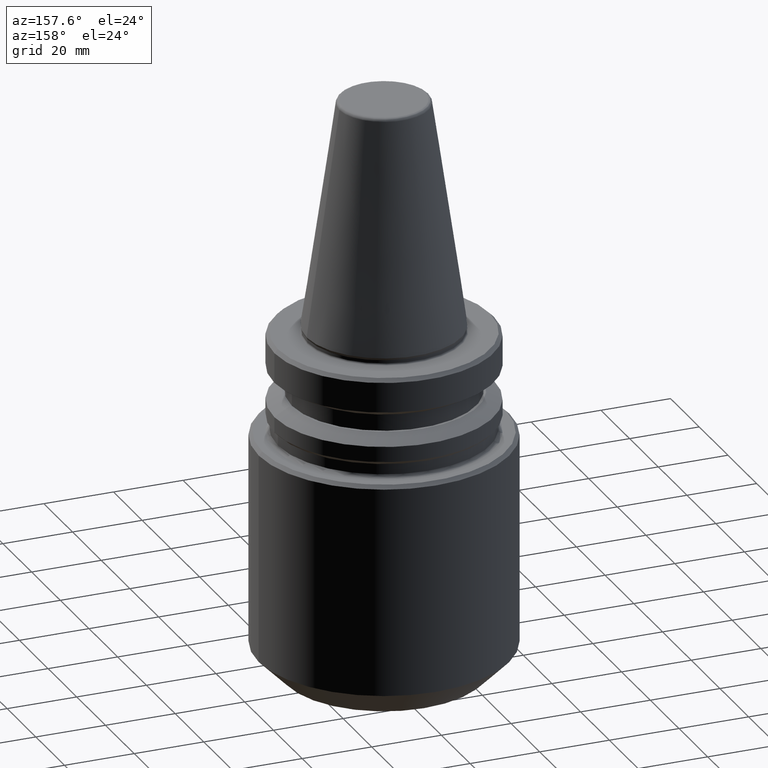
[diagram: clean part render]
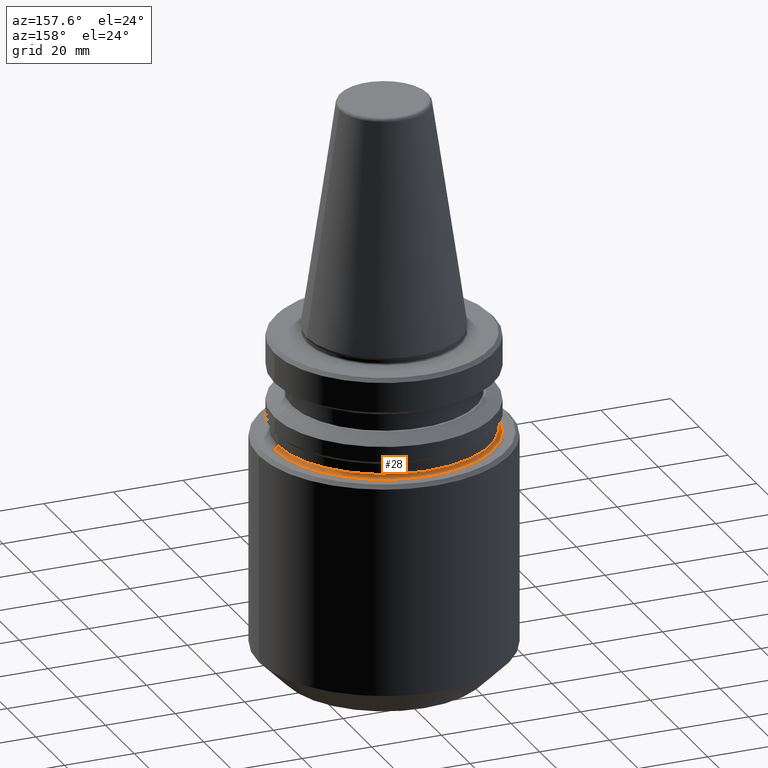
[diagram: same view with one face highlighted and labeled with its STEP entity id]
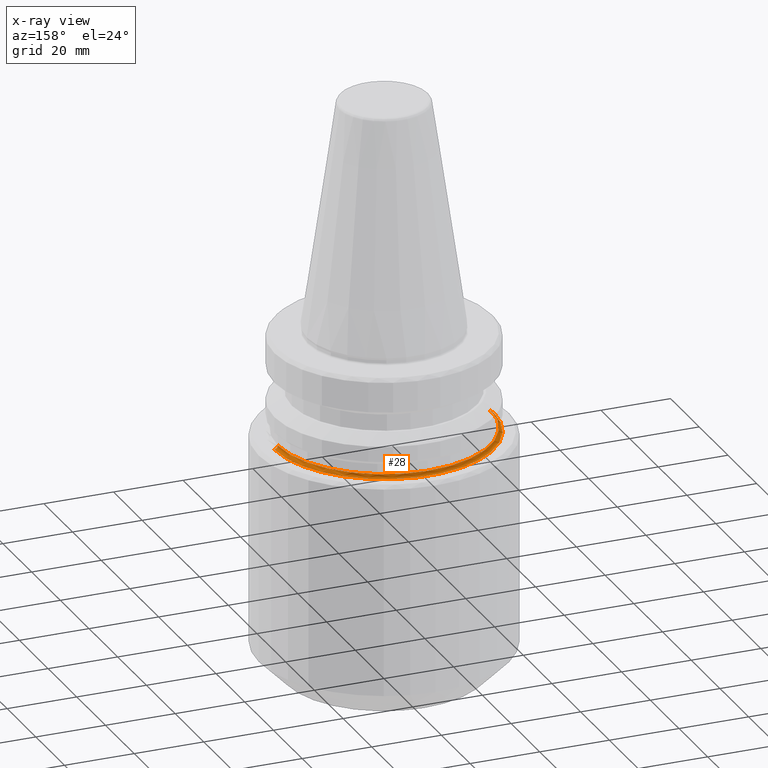
[diagram: x-ray of the same camera — body ghosted, the highlighted face saturated]
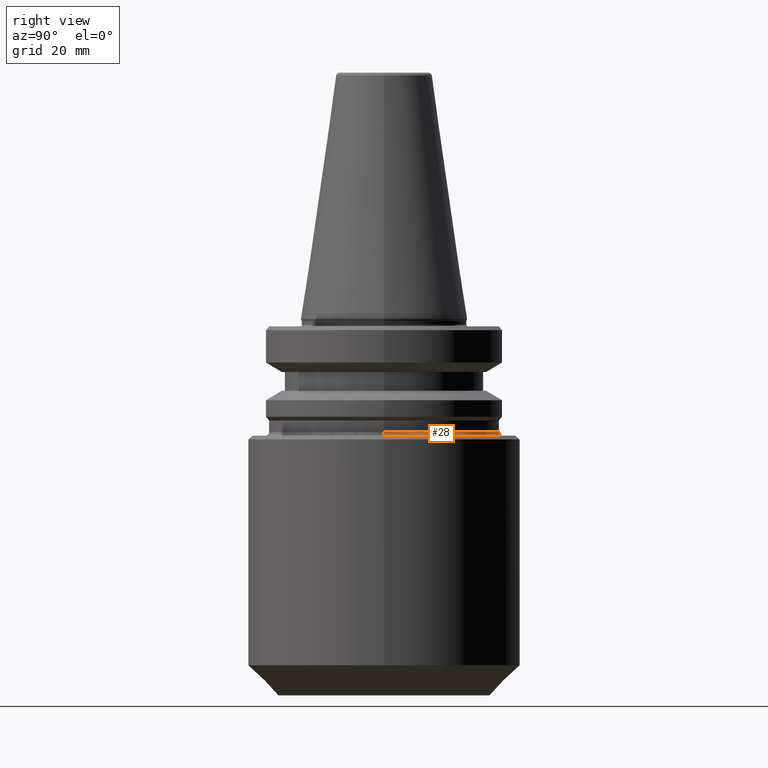
[diagram: same view with one face highlighted and labeled with its STEP entity id]
A machine part, auxiliary view. The second image highlights one B-rep face of the part: STEP entity #28.
The next image is the same camera in x-ray: the body ghosted, the highlighted face saturated — about 1% of this face is hidden behind the body in this view.
A second angle (right view) of the same face is appended — the face is thin or edge-on in the first view.
In plain terms, the highlighted toroidal blend (fillet) surface has major radius 31.5 mm and minor (blend) radius 1 mm.
Its self-contained STEP definition (entity closure, byte-faithful):
#12 = EDGE_CURVE ( 'NONE', #968, #718, #809, .T. ) ;
#28 = ADVANCED_FACE ( 'NONE', ( #964 ), #306, .F. ) ;
#35 = DIRECTION ( 'NONE',  ( 1.000000000000000000, 0.0000000000000000000, 0.0000000000000000000 ) ) ;
#54 = ORIENTED_EDGE ( 'NONE', *, *, #12, .F. ) ;
#68 = ORIENTED_EDGE ( 'NONE', *, *, #129, .T. ) ;
#89 = CARTESIAN_POINT ( 'NONE',  ( 30.50000000000024900, 0.0000000000000000000, -30.00000000000023400 ) ) ;
#124 = EDGE_LOOP ( 'NONE', ( #752, #54, #68, #1147 ) ) ;
#129 = EDGE_CURVE ( 'NONE', #968, #948, #650, .T. ) ;
#179 = CARTESIAN_POINT ( 'NONE',  ( -31.50000000000030600, 3.857637417314200600E-015, -31.00000000000027000 ) ) ;
#222 = DIRECTION ( 'NONE',  ( 1.000000000000000000, 0.0000000000000000000, 0.0000000000000000000 ) ) ;
#228 = AXIS2_PLACEMENT_3D ( 'NONE', #385, #1002, #464 ) ;
#251 = DIRECTION ( 'NONE',  ( 0.0000000000000000000, -1.000000000000000000, 0.0000000000000000000 ) ) ;
#267 = CARTESIAN_POINT ( 'NONE',  ( 0.0000000000000000000, 0.0000000000000000000, -30.00000000000023400 ) ) ;
#296 = AXIS2_PLACEMENT_3D ( 'NONE', #314, #647, #222 ) ;
#306 = TOROIDAL_SURFACE ( 'NONE', #296, 31.50000000000030600, 1.000000000000056400 ) ;
#314 = CARTESIAN_POINT ( 'NONE',  ( 0.0000000000000000000, 0.0000000000000000000, -30.00000000000024900 ) ) ;
#321 = AXIS2_PLACEMENT_3D ( 'NONE', #267, #394, #35 ) ;
#365 = CARTESIAN_POINT ( 'NONE',  ( -31.50000000000030600, 3.857637417314200600E-015, -30.00000000000024900 ) ) ;
#385 = CARTESIAN_POINT ( 'NONE',  ( 0.0000000000000000000, 0.0000000000000000000, -31.00000000000023400 ) ) ;
#394 = DIRECTION ( 'NONE',  ( -0.0000000000000000000, -0.0000000000000000000, 1.000000000000000000 ) ) ;
#407 = CIRCLE ( 'NONE', #576, 1.000000000000056400 ) ;
#432 = EDGE_CURVE ( 'NONE', #718, #683, #407, .T. ) ;
#437 = DIRECTION ( 'NONE',  ( -1.000000000000000000, 1.224646799147350700E-016, 0.0000000000000000000 ) ) ;
#464 = DIRECTION ( 'NONE',  ( 1.000000000000000000, 0.0000000000000000000, 0.0000000000000000000 ) ) ;
#569 = CARTESIAN_POINT ( 'NONE',  ( 31.50000000000030600, 0.0000000000000000000, -31.00000000000027000 ) ) ;
#576 = AXIS2_PLACEMENT_3D ( 'NONE', #365, #974, #437 ) ;
#601 = CIRCLE ( 'NONE', #228, 31.50000000000030600 ) ;
#647 = DIRECTION ( 'NONE',  ( -0.0000000000000000000, -0.0000000000000000000, 1.000000000000000000 ) ) ;
#650 = CIRCLE ( 'NONE', #890, 1.000000000000056400 ) ;
#683 = VERTEX_POINT ( 'NONE', #179 ) ;
#695 = CARTESIAN_POINT ( 'NONE',  ( -30.50000000000024900, 3.796405077356829000E-015, -30.00000000000023400 ) ) ;
#718 = VERTEX_POINT ( 'NONE', #695 ) ;
#752 = ORIENTED_EDGE ( 'NONE', *, *, #432, .F. ) ;
#778 = CARTESIAN_POINT ( 'NONE',  ( 31.50000000000030600, 0.0000000000000000000, -30.00000000000024900 ) ) ;
#809 = CIRCLE ( 'NONE', #321, 30.50000000000024900 ) ;
#869 = DIRECTION ( 'NONE',  ( 0.0000000000000000000, 0.0000000000000000000, -1.000000000000000000 ) ) ;
#890 = AXIS2_PLACEMENT_3D ( 'NONE', #778, #251, #869 ) ;
#948 = VERTEX_POINT ( 'NONE', #569 ) ;
#964 = FACE_OUTER_BOUND ( 'NONE', #124, .T. ) ;
#968 = VERTEX_POINT ( 'NONE', #89 ) ;
#974 = DIRECTION ( 'NONE',  ( 1.224646799147353200E-016, 1.000000000000000000, 0.0000000000000000000 ) ) ;
#1002 = DIRECTION ( 'NONE',  ( -0.0000000000000000000, -0.0000000000000000000, 1.000000000000000000 ) ) ;
#1147 = ORIENTED_EDGE ( 'NONE', *, *, #1152, .T. ) ;
#1152 = EDGE_CURVE ( 'NONE', #948, #683, #601, .T. ) ;